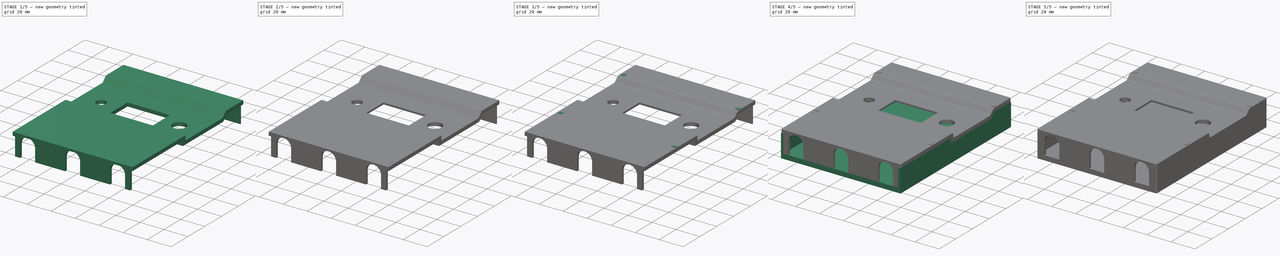
[diagram: build sequence overview — one tinted view per stage of 5, left to right]
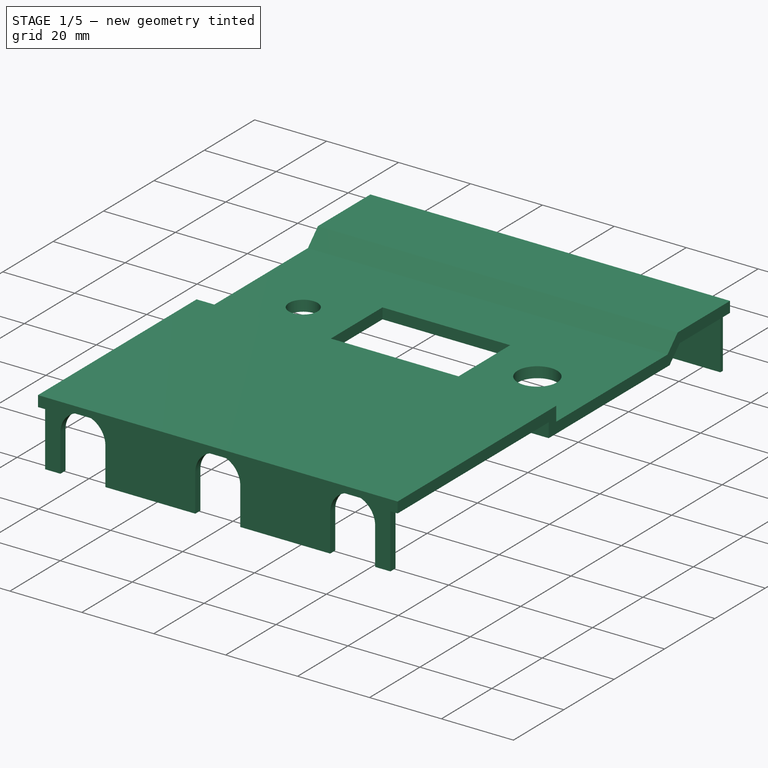
[diagram: stage 1 of 5 — iso view after this stage's code; geometry added in this stage tinted green]
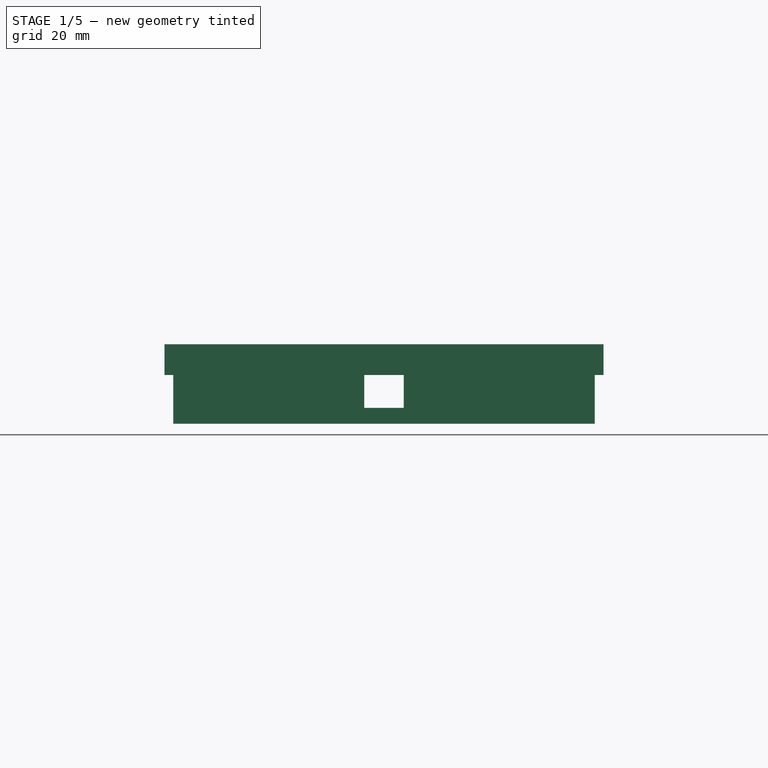
[diagram: stage 1 of 5 — front view after this stage's code; geometry added in this stage tinted green]
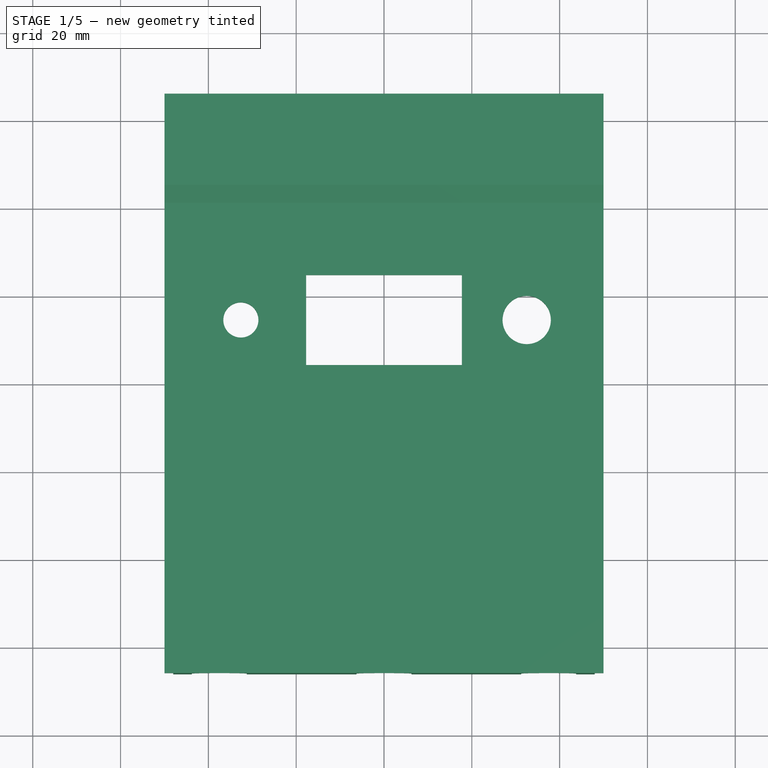
[diagram: stage 1 of 5 — top view after this stage's code; geometry added in this stage tinted green]
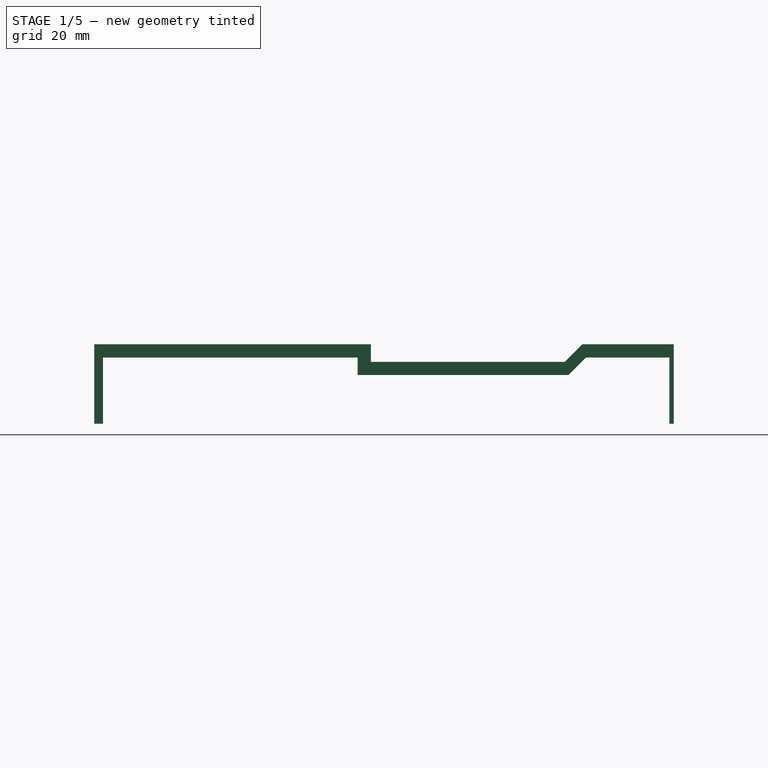
[diagram: stage 1 of 5 — right view after this stage's code; geometry added in this stage tinted green]
FCSTD DOCUMENT  (FreeCAD 0.20R)
Label: Case_V1.0
License: All rights reserved
LicenseURL: http://en.wikipedia.org/wiki/All_rights_reserved
objects: Sketcher::SketchObject×15, PartDesign::Pocket×10, PartDesign::Chamfer×6, PartDesign::Pad×5, PartDesign::Fillet×4, PartDesign::Mirrored×3, PartDesign::Body×2, Spreadsheet::Sheet×1, Part::Feature×1, PartDesign::Plane×1
note: 72 computed .brp shape members not serialized (recipe doc carries the construction recipe); baked Part::Feature solids carry a one-line shape summary decoded from their .brp

FEATURE [PartDesign::Plane] DatumPlane
  AttachmentOffset = pos=(0,0,48) rot=(0,0,1;0rad)
  Length = 148.248
  MapMode = 5
  Placement = pos=(48,-1.07e-14,1.07e-14) rot=(0.57735,0.57735,0.57735;2.0944rad)
  ResizeMode = 0
  Support = -> [YZ_Plane001]
  Width = 66.2481
FEATURE [Sketcher::SketchObject] Sketch005
  FullyConstrained = true
  MapMode = 5
  Placement = pos=(48,-1.07e-14,1.07e-14) rot=(0.57735,0.57735,0.57735;2.0944rad)
  Support = -> [DatumPlane]
  expr: Constraints[31] = 19 - 3.9
  expr: Constraints[33] = 19 - 3.9
  expr: Constraints[34] = 19mm
  expr: Constraints[35] = 2
  expr: Constraints[36] = Spreadsheet.thickness_top
  expr: Constraints[37] = Spreadsheet.thickness_top
  expr: Constraints[38] = Spreadsheet.thickness_top
  expr: Constraints[39] = 1
  expr: Constraints[40] = Spreadsheet.thickness_top
  sketch-geometry (16):
    g0: LineSegment StartX=-64 StartY=3.9 StartZ=0 EndX=-64 EndY=19 EndZ=0
    g1: LineSegment StartX=-64 StartY=19 StartZ=0 EndX=-6 EndY=19 EndZ=0
    g2: LineSegment StartX=-6 StartY=19 StartZ=0 EndX=-6 EndY=15 EndZ=0
    g3: LineSegment StartX=-6 StartY=15 StartZ=0 EndX=42 EndY=15 EndZ=0
    g4: LineSegment StartX=42 StartY=15 StartZ=0 EndX=46 EndY=19 EndZ=0
    g5: LineSegment StartX=46 StartY=19 StartZ=0 EndX=65 EndY=19 EndZ=0
    g6: LineSegment StartX=65 StartY=19 StartZ=0 EndX=65 EndY=3.9 EndZ=0
    g7: LineSegment StartX=-64 StartY=3.9 StartZ=0 EndX=-66 EndY=3.9 EndZ=0
    g8: LineSegment StartX=-66 StartY=3.9 StartZ=0 EndX=-66 EndY=22 EndZ=0
    g9: LineSegment StartX=-66 StartY=22 StartZ=0 EndX=-3 EndY=22 EndZ=0
    g10: LineSegment StartX=-3 StartY=22 StartZ=0 EndX=-3 EndY=18 EndZ=0
    g11: LineSegment StartX=-3 StartY=18 StartZ=0 EndX=41.19 EndY=18 EndZ=0
    g12: LineSegment StartX=41.19 StartY=18 StartZ=0 EndX=45.19 EndY=22 EndZ=0
    g13: LineSegment StartX=45.19 StartY=22 StartZ=0 EndX=66 EndY=22 EndZ=0
    g14: LineSegment StartX=66 StartY=22 StartZ=0 EndX=66 EndY=3.9 EndZ=0
    g15: LineSegment StartX=66 StartY=3.9 StartZ=0 EndX=65 EndY=3.9 EndZ=0
  constraints (48):
    c: Vertical(g0)
    c: Coincident(g1,g0)
    c: Horizontal(g1)
    c: Coincident(g2,g1)
    c: Vertical(g2)
    c: Coincident(g3,g2)
    c: Horizontal(g3)
    c: Coincident(g4,g3)
    c: Coincident(g5,g4)
    c: Horizontal(g5)
    c: Coincident(g6,g5)
    c: Vertical(g6)
    c: Coincident(g7,g0)
    c: Coincident(g8,g7)
    c: Vertical(g8)
    c: Coincident(g9,g8)
    c: Horizontal(g9)
    c: Coincident(g10,g9)
    c: Vertical(g10)
    c: Coincident(g11,g10)
    c: Horizontal(g11)
    c: Coincident(g12,g11)
    c: Coincident(g13,g12)
    c: Horizontal(g13)
    c: Coincident(g14,g13)
    c: Vertical(g14)
    c: Coincident(g15,g14)
    c: Coincident(g15,g6)
    c: DistanceX(g0,g6) = 129
    c: DistanceX(g0,g-1) = 64
    c: DistanceX(g0,g1) = 58
    c: DistanceY(g0,g0) = 15.1
    c: DistanceY(g2,g1) = 4
    c: DistanceY(g6,g5) = 15.1
    c: DistanceX(g4,g5) = 19
    c: DistanceX(g7,g0) = 2
    c: DistanceY(g0,g8) = 3
    c: DistanceX(g1,g9) = 3
    c: DistanceY(g2,g10) = 3
    c: DistanceX(g6,g14) = 1
    c: DistanceY(g5,g13) = 3
    c: DistanceX(g2,g3) = 48
    c: Angle(g12,g11) = 2.35619
    c: DistanceY(g-1,g7) = 3.9
    c: Horizontal(g7,g0)
    c: DistanceY(g-1,g6) = 3.9
    c: Horizontal(g6,g14)
    c: Distance(g13) = 20.81
FEATURE [PartDesign::Pad] Pad002
  Direction = (1,-1e-16,1e-16)
  Length = 96
  Length2 = 10
  Placement = pos=(48,-1.1e-14,1.1e-14) rot=(0.57735,0.57735,0.57735;2.0944rad)
  Profile = -> Sketch005
  ReferenceAxis = -> Sketch005 [N_Axis]
  Reversed = true
  Type = 0
FEATURE [Sketcher::SketchObject] Sketch006
  ExternalGeometry = -> [Pad002]
  FullyConstrained = true
  MapMode = 5
  Placement = pos=(48,-1.3e-14,18) rot=(0,0,-1;1.5708rad)
  Support = -> [Pad002]
  expr: Constraints[0] = 15.5mm
  expr: Constraints[3] = 14.4 + 3 - 2
  sketch-geometry (7):
    g0: Circle CenterX=-14.5 CenterY=-15.5 CenterZ=0 NormalX=0 NormalY=0 NormalZ=1 AngleXU=0 Radius=5.5
    g1: Circle CenterX=-14.5 CenterY=-80.6 CenterZ=0 NormalX=0 NormalY=0 NormalZ=1 AngleXU=0 Radius=4
    g2: LineSegment StartX=-24.75 StartY=-65.75 StartZ=0 EndX=-24.75 EndY=-30.25 EndZ=0
    g3: LineSegment StartX=-24.75 StartY=-30.25 StartZ=0 EndX=-4.25 EndY=-30.25 EndZ=0
    g4: LineSegment StartX=-4.25 StartY=-30.25 StartZ=0 EndX=-4.25 EndY=-65.75 EndZ=0
    g5: LineSegment StartX=-4.25 StartY=-65.75 StartZ=0 EndX=-24.75 EndY=-65.75 EndZ=0
    g6: GeomPoint X=-14.5 Y=-48 Z=0
  constraints (19):
    c: DistanceY(g0,g-1) = 15.5
    c: DistanceX(g-3,g0) = 51.5
    c: DistanceX(g-3,g1) = 51.5
    c: DistanceY(g-5,g1) = 15.4
    c: Diameter(g1) = 8
    c: Diameter(g0) = 11
    c: Coincident(g2,g3)
    c: Coincident(g3,g4)
    c: Coincident(g4,g5)
    c: Coincident(g5,g2)
    c: Horizontal(g3)
    c: Horizontal(g5)
    c: Vertical(g2)
    c: Vertical(g4)
    c: Symmetric(g3,g2,g6)
    c: Distance(g2) = 35.5
    c: Distance(g5) = 20.5
    c: DistanceX(g-3,g6) = 51.5
    c: DistanceY(g6,g-4) = 48
FEATURE [Sketcher::SketchObject] Sketch007
  ExternalGeometry = -> [Pad002]
  FullyConstrained = true
  MapMode = 5
  Placement = pos=(-48,-1.1e-14,1.1e-14) rot=(0.57735,0.57735,-0.57735;4.18879rad)
  Support = -> [Pad002]
  sketch-geometry (12):
    g0: LineSegment StartX=66 StartY=-22 StartZ=0 EndX=45.19 EndY=-22 EndZ=0
    g1: LineSegment StartX=45.19 StartY=-22 StartZ=0 EndX=41.19 EndY=-18 EndZ=0
    g2: LineSegment StartX=41.19 StartY=-18 StartZ=0 EndX=-3 EndY=-18 EndZ=0
    g3: LineSegment StartX=-3 StartY=-18 StartZ=0 EndX=-3 EndY=-22 EndZ=0
    g4: LineSegment StartX=-3 StartY=-22 StartZ=0 EndX=-66 EndY=-22 EndZ=0
    g5: LineSegment StartX=-6 StartY=-19 StartZ=0 EndX=-66 EndY=-19 EndZ=0
    g6: LineSegment StartX=-66 StartY=-22 StartZ=0 EndX=-66 EndY=-19 EndZ=0
    g7: LineSegment StartX=-6 StartY=-15 StartZ=0 EndX=-6 EndY=-19 EndZ=0
    g8: LineSegment StartX=-6 StartY=-15 StartZ=0 EndX=42 EndY=-15 EndZ=0
    g9: LineSegment StartX=46 StartY=-19 StartZ=0 EndX=42 EndY=-15 EndZ=0
    g10: LineSegment StartX=46 StartY=-19 StartZ=0 EndX=66 EndY=-19 EndZ=0
    g11: LineSegment StartX=66 StartY=-22 StartZ=0 EndX=66 EndY=-19 EndZ=0
  constraints (26):
    c: Coincident(g0,g-16)
    c: Coincident(g0,g-5)
    c: Coincident(g1,g0)
    c: Coincident(g1,g-4)
    c: Coincident(g2,g1)
    c: Coincident(g2,g-10)
    c: Coincident(g3,g2)
    c: Coincident(g3,g-11)
    c: Coincident(g4,g3)
    c: Coincident(g4,g-14)
    c: Coincident(g5,g-12)
    c: PointOnObject(g5,g-14)
    c: Horizontal(g5)
    c: Coincident(g6,g4)
    c: Coincident(g6,g5)
    c: Coincident(g7,g-9)
    c: Coincident(g7,g5)
    c: Coincident(g8,g7)
    c: Coincident(g8,g-8)
    c: Coincident(g9,g-7)
    c: Coincident(g9,g8)
    c: Coincident(g10,g9)
    c: PointOnObject(g10,g-16)
    c: Horizontal(g10)
    c: Coincident(g11,g0)
    c: Coincident(g11,g10)
FEATURE [PartDesign::Pad] Pad003
  BaseFeature = -> Pad002
  Direction = (-1,0,2e-16)
  Length = 2
  Length2 = 10
  Placement = pos=(48,-1.1e-14,1.1e-14) rot=(0.57735,0.57735,0.57735;2.0944rad)
  Profile = -> Sketch007
  ReferenceAxis = -> Sketch007 [N_Axis]
  Type = 0
FEATURE [PartDesign::Mirrored] Mirrored
  BaseFeature = -> Pad003
  MirrorPlane = -> YZ_Plane001
  Originals = -> [Pad003]
  Placement = pos=(48,-1.1e-14,1.1e-14) rot=(0.57735,0.57735,0.57735;2.0944rad)
FEATURE [PartDesign::Pocket] Pocket002
  BaseFeature = -> Mirrored
  Direction = (-2e-16,1e-16,-1)
  Length = 5
  Length2 = 5
  Placement = pos=(48,-1.1e-14,1.1e-14) rot=(0.57735,0.57735,0.57735;2.0944rad)
  Profile = -> Sketch006
  ReferenceAxis = -> Sketch006 [N_Axis]
  Type = 1
FEATURE [Sketcher::SketchObject] Sketch008
  ExternalGeometry = -> [Pocket002]
  FullyConstrained = true
  MapMode = 5
  Placement = pos=(48,-66,-3.5e-15) rot=(0.57735,0.57735,-0.57735;2.0944rad)
  Support = -> [Pocket002]
  sketch-geometry (12):
    g0: ArcOfCircle CenterX=-14.3 CenterY=-48 CenterZ=0 NormalX=0 NormalY=0 NormalZ=1 AngleXU=0 Radius=6.25 StartAngle=1.5708 EndAngle=4.71239
    g1: ArcOfCircle CenterX=-14.3 CenterY=-10.5 CenterZ=0 NormalX=0 NormalY=0 NormalZ=1 AngleXU=0 Radius=6.25 StartAngle=1.5708 EndAngle=4.71239
    g2: ArcOfCircle CenterX=-14.3 CenterY=-85.5 CenterZ=0 NormalX=0 NormalY=0 NormalZ=1 AngleXU=0 Radius=6.25 StartAngle=1.5708 EndAngle=4.71239
    g3: LineSegment StartX=-14.3 StartY=-91.75 StartZ=0 EndX=-3.9 EndY=-91.75 EndZ=0
    g4: LineSegment StartX=-14.3 StartY=-79.25 StartZ=0 EndX=-3.9 EndY=-79.25 EndZ=0
    g5: LineSegment StartX=-14.3 StartY=-54.25 StartZ=0 EndX=-3.9 EndY=-54.25 EndZ=0
    g6: LineSegment StartX=-14.3 StartY=-41.75 StartZ=0 EndX=-3.9 EndY=-41.75 EndZ=0
    g7: LineSegment StartX=-14.3 StartY=-16.75 StartZ=0 EndX=-3.9 EndY=-16.75 EndZ=0
    g8: LineSegment StartX=-14.3 StartY=-4.25 StartZ=0 EndX=-3.9 EndY=-4.25 EndZ=0
    g9: LineSegment StartX=-3.9 StartY=-16.75 StartZ=0 EndX=-3.9 EndY=-4.25 EndZ=0
    g10: LineSegment StartX=-3.9 StartY=-54.25 StartZ=0 EndX=-3.9 EndY=-41.75 EndZ=0
    g11: LineSegment StartX=-3.9 StartY=-91.75 StartZ=0 EndX=-3.9 EndY=-79.25 EndZ=0
  constraints (33):
    c: Diameter(g2) = 12.5
    c: Equal(g2,g0)
    c: Equal(g0,g1)
    c: DistanceX(g0,g-7) = 10.4
    c: DistanceY(g0,g-7) = 48
    c: DistanceX(g1,g-7) = 10.4
    c: DistanceX(g2,g-4) = 10.4
    c: DistanceY(g2,g0) = 37.5
    c: DistanceY(g0,g1) = 37.5
    c: PointOnObject(g3,g-3)
    c: Horizontal(g3)
    c: PointOnObject(g4,g-3)
    c: Horizontal(g4)
    c: PointOnObject(g5,g-3)
    c: Horizontal(g5)
    c: PointOnObject(g6,g-3)
    c: Horizontal(g6)
    c: PointOnObject(g7,g-3)
    c: Horizontal(g7)
    c: PointOnObject(g8,g-3)
    c: Horizontal(g8)
    c: Coincident(g9,g7)
    c: Coincident(g9,g8)
    c: Coincident(g10,g5)
    c: Coincident(g10,g6)
    c: Coincident(g11,g3)
    c: Coincident(g11,g4)
    c: Tangent(g2,g3) = -1.5708
    c: Tangent(g2,g4) = 1.5708
    c: Tangent(g0,g5) = -1.5708
    c: Tangent(g0,g6) = 1.5708
    c: Tangent(g1,g7) = -1.5708
    c: Tangent(g1,g8) = 1.5708
FEATURE [PartDesign::Pocket] Pocket003
  BaseFeature = -> Pocket002
  Direction = (1e-16,1,1e-16)
  Length = 5
  Length2 = 5
  Placement = pos=(48,-1.1e-14,1.1e-14) rot=(0.57735,0.57735,0.57735;2.0944rad)
  Profile = -> Sketch008
  ReferenceAxis = -> Sketch008 [N_Axis]
  Type = 2
FEATURE [Sketcher::SketchObject] Sketch009
  ExternalGeometry = -> [Pocket003]
  FullyConstrained = true
  MapMode = 5
  Placement = pos=(48,66,2.55e-14) rot=(-0.57735,-0.57735,-0.57735;2.0944rad)
  Support = -> [Pocket003]
  expr: Constraints[18] = 96 / 2 - 4.5
  sketch-geometry (17):
    g0: LineSegment StartX=10.81 StartY=-59.06 StartZ=0 EndX=10.81 EndY=-65.4 EndZ=0
    g1: LineSegment StartX=9.51 StartY=-66.7 StartZ=0 EndX=8.95 EndY=-66.7 EndZ=0
    g2: LineSegment StartX=7.65 StartY=-65.4 StartZ=0 EndX=7.65 EndY=-59.06 EndZ=0
    g3: LineSegment StartX=8.95 StartY=-57.76 StartZ=0 EndX=9.51 EndY=-57.76 EndZ=0
    g4: GeomPoint X=9.23 Y=-62.23 Z=0
    g5: LineSegment StartX=18.5 StartY=-43.5 StartZ=0 EndX=7.5 EndY=-43.5 EndZ=0
    g6: LineSegment StartX=7.5 StartY=-43.5 StartZ=0 EndX=7.5 EndY=-52.5 EndZ=0
    g7: LineSegment StartX=7.5 StartY=-52.5 StartZ=0 EndX=18.5 EndY=-52.5 EndZ=0
    g8: LineSegment StartX=18.5 StartY=-52.5 StartZ=0 EndX=18.5 EndY=-43.5 EndZ=0
    g9: ArcOfCircle CenterX=9.51 CenterY=-59.06 CenterZ=0 NormalX=0 NormalY=0 NormalZ=1 AngleXU=0 Radius=1.3 StartAngle=3e-16 EndAngle=1.5708
    g10: GeomPoint X=10.81 Y=-57.76 Z=0
    g11: ArcOfCircle CenterX=9.51 CenterY=-65.4 CenterZ=0 NormalX=0 NormalY=0 NormalZ=1 AngleXU=0 Radius=1.3 StartAngle=4.71239 EndAngle=6.28319
    g12: GeomPoint X=10.81 Y=-66.7 Z=0
    g13: ArcOfCircle CenterX=8.95 CenterY=-65.4 CenterZ=0 NormalX=0 NormalY=0 NormalZ=1 AngleXU=0 Radius=1.3 StartAngle=3.14159 EndAngle=4.71239
    g14: GeomPoint X=7.65 Y=-66.7 Z=0
    g15: ArcOfCircle CenterX=8.95 CenterY=-59.06 CenterZ=0 NormalX=0 NormalY=0 NormalZ=1 AngleXU=0 Radius=1.3 StartAngle=1.5708 EndAngle=3.14159
    g16: GeomPoint X=7.65 Y=-57.76 Z=0
  constraints (41):
    c: Horizontal(g1)
    c: Horizontal(g3)
    c: Vertical(g0)
    c: Vertical(g2)
    c: Symmetric(g14,g10,g4)
    c: Distance(g14,g12) = 3.16
    c: Distance(g16,g14) = 8.94
    c: Coincident(g5,g6)
    c: Coincident(g6,g7)
    c: Coincident(g7,g8)
    c: Coincident(g8,g5)
    c: Horizontal(g5)
    c: Horizontal(g7)
    c: Vertical(g6)
    c: Vertical(g8)
    c: DistanceX(g-4,g5) = 14.6
    c: DistanceX(g-4,g5) = 3.6
    c: Distance(g8) = 9
    c: DistanceY(g-5,g6) = 43.5
    c: DistanceY(g-5,g4) = 33.77
    c: DistanceX(g-5,g16) = 3.75
    c: PointOnObject(g10,g0)
    c: PointOnObject(g10,g3)
    c: Tangent(g0,g9) = 1.5708
    c: Tangent(g3,g9) = 1.5708
    c: PointOnObject(g12,g0)
    c: PointOnObject(g12,g1)
    c: Tangent(g0,g11) = 1.5708
    c: Tangent(g1,g11) = 1.5708
    c: PointOnObject(g14,g1)
    c: PointOnObject(g14,g2)
    c: Tangent(g1,g13) = 1.5708
    c: Tangent(g2,g13) = 1.5708
    c: PointOnObject(g16,g2)
    c: PointOnObject(g16,g3)
    c: Tangent(g2,g15) = 1.5708
    c: Tangent(g3,g15) = 1.5708
    c: Equal(g9,g11)
    c: Equal(g11,g13)
    c: Equal(g13,g15)
    c: Radius(g9) = 1.3
FEATURE [PartDesign::Pocket] Pocket004
  BaseFeature = -> Pocket003
  Direction = (-1e-16,-1,-1e-16)
  Length = 5
  Length2 = 5
  Placement = pos=(48,-1.1e-14,1.1e-14) rot=(0.57735,0.57735,0.57735;2.0944rad)
  Profile = -> Sketch009
  ReferenceAxis = -> Sketch009 [N_Axis]
  Type = 2
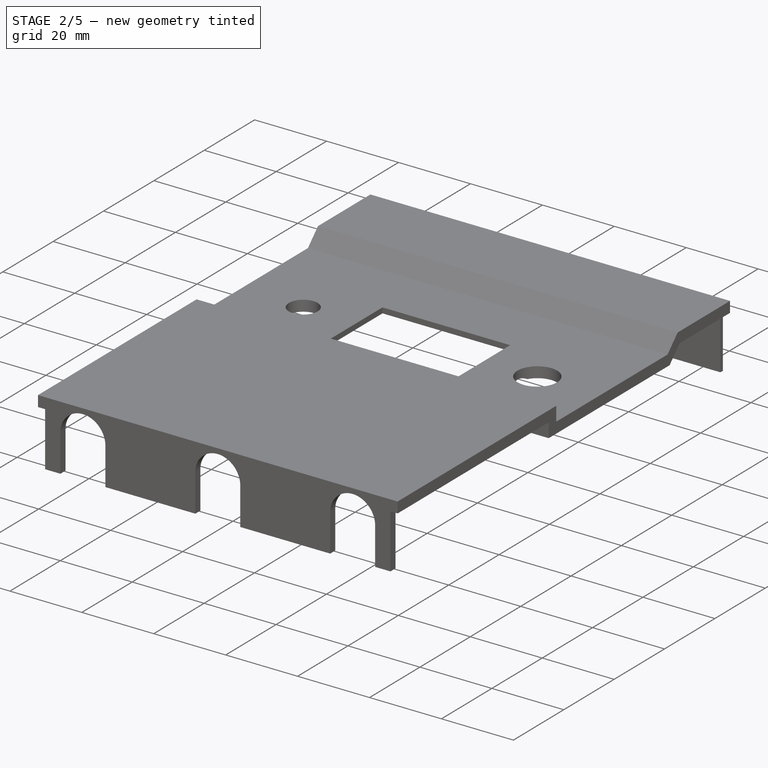
[diagram: stage 2 of 5 — iso view after this stage's code; geometry added in this stage tinted green]
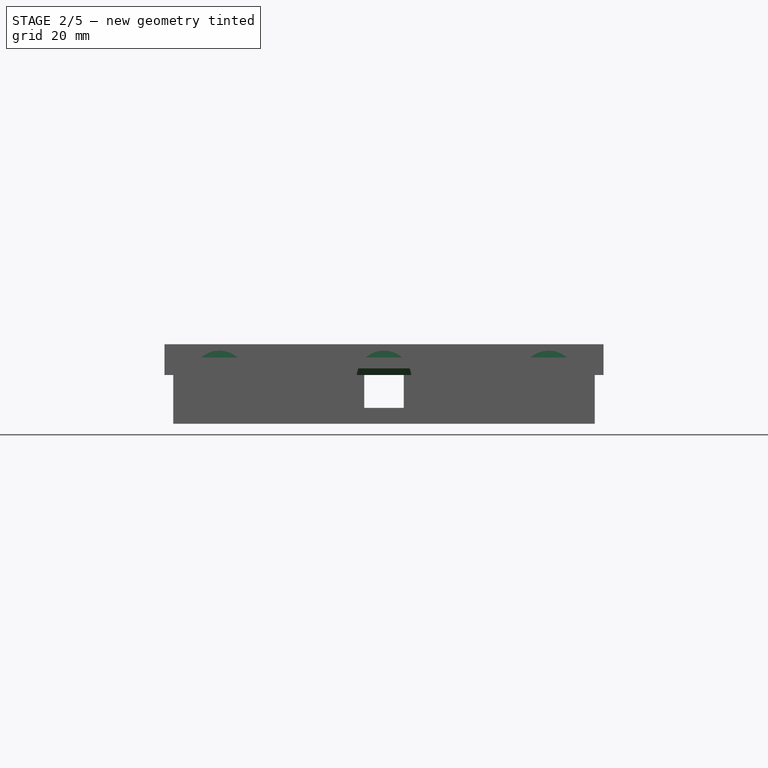
[diagram: stage 2 of 5 — front view after this stage's code; geometry added in this stage tinted green]
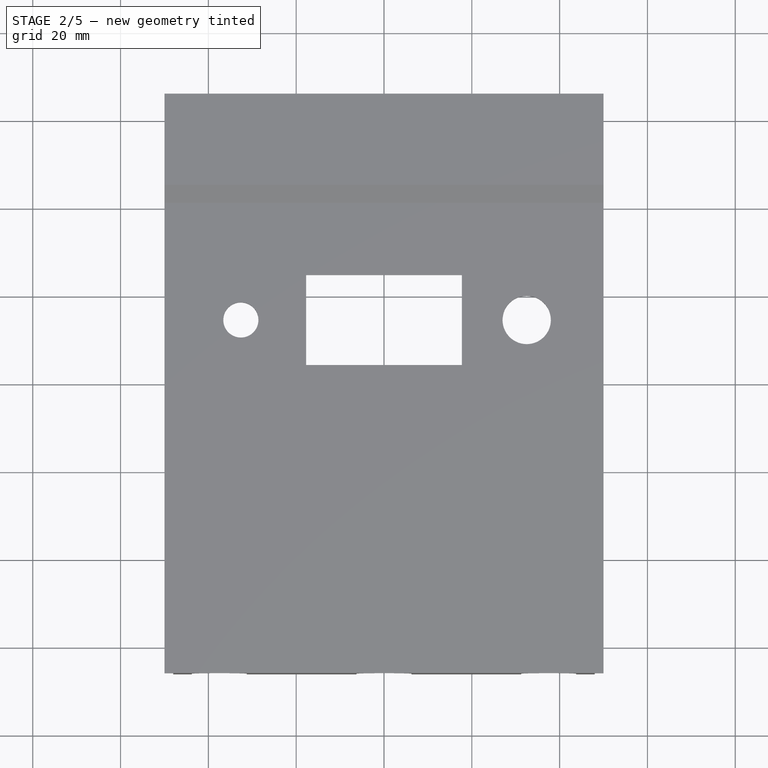
[diagram: stage 2 of 5 — top view after this stage's code; geometry added in this stage tinted green]
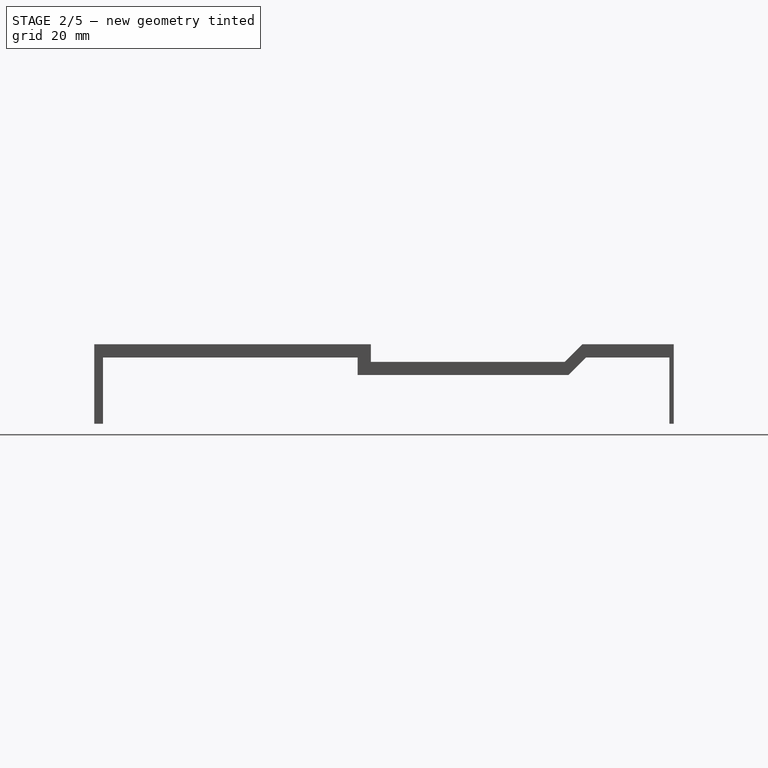
[diagram: stage 2 of 5 — right view after this stage's code; geometry added in this stage tinted green]
FEATURE [Sketcher::SketchObject] Sketch010
  ExternalGeometry = -> [Pocket004]
  FullyConstrained = true
  MapMode = 5
  Placement = pos=(48,-1.27e-14,15) rot=(0.707107,0.707107,0;3.14159rad)
  Support = -> [Pocket004]
  sketch-geometry (4):
    g0: LineSegment StartX=-6 StartY=-75.75 StartZ=0 EndX=34.75 EndY=-75.75 EndZ=0
    g1: LineSegment StartX=34.75 StartY=-75.75 StartZ=0 EndX=34.75 EndY=-20.25 EndZ=0
    g2: LineSegment StartX=34.75 StartY=-20.25 StartZ=0 EndX=-6 EndY=-20.25 EndZ=0
    g3: LineSegment StartX=-6 StartY=-20.25 StartZ=0 EndX=-6 EndY=-75.75 EndZ=0
  constraints (12):
    c: Coincident(g0,g1)
    c: Coincident(g1,g2)
    c: Coincident(g2,g3)
    c: Coincident(g3,g0)
    c: Horizontal(g0)
    c: Horizontal(g2)
    c: Vertical(g1)
    c: Vertical(g3)
    c: DistanceY(g0,g-6) = 10
    c: DistanceX(g-6,g0) = 10
    c: PointOnObject(g2,g-7)
    c: DistanceY(g-4,g2) = 10
FEATURE [PartDesign::Pocket] Pocket005
  BaseFeature = -> Pocket004
  Direction = (0,1e-16,1)
  Length = 1.5
  Length2 = 5
  Placement = pos=(48,-1.1e-14,1.1e-14) rot=(0.57735,0.57735,0.57735;2.0944rad)
  Profile = -> Sketch010
  ReferenceAxis = -> Sketch010 [N_Axis]
  Type = 0
FEATURE [PartDesign::Chamfer] Chamfer
  Angle = 45
  Base = -> Pocket005 [Edge109,Edge110,Edge111]
  BaseFeature = -> Pocket005
  ChamferType = 0
  FlipDirection = false
  Placement = pos=(48,-1.1e-14,1.1e-14) rot=(0.57735,0.57735,0.57735;2.0944rad)
  Size = 1.49
  Size2 = 1
  SupportTransform = false
  UseAllEdges = false
FEATURE [Sketcher::SketchObject] Sketch011
  ExternalGeometry = -> [Chamfer]
  FullyConstrained = true
  MapMode = 5
  Placement = pos=(48,-1.31e-14,19) rot=(0.707107,0.707107,0;3.14159rad)
  Support = -> [Chamfer]
  sketch-geometry (15):
    g0: LineSegment StartX=-37 StartY=-3 StartZ=0 EndX=-37 EndY=-18 EndZ=0
    g1: LineSegment StartX=-37 StartY=-18 StartZ=0 EndX=-64 EndY=-18 EndZ=0
    g2: LineSegment StartX=-64 StartY=-18 StartZ=0 EndX=-64 EndY=-3 EndZ=0
    g3: LineSegment StartX=-64 StartY=-3 StartZ=0 EndX=-37 EndY=-3 EndZ=0
    g4: GeomPoint X=-50.5 Y=-10.5 Z=0
    g5: LineSegment StartX=-37 StartY=-40.5 StartZ=0 EndX=-37 EndY=-55.5 EndZ=0
    g6: LineSegment StartX=-37 StartY=-55.5 StartZ=0 EndX=-64 EndY=-55.5 EndZ=0
    g7: LineSegment StartX=-64 StartY=-55.5 StartZ=0 EndX=-64 EndY=-40.5 EndZ=0
    g8: LineSegment StartX=-64 StartY=-40.5 StartZ=0 EndX=-37 EndY=-40.5 EndZ=0
    g9: GeomPoint X=-50.5 Y=-48 Z=0
    g10: LineSegment StartX=-37 StartY=-93 StartZ=0 EndX=-37 EndY=-78 EndZ=0
    g11: LineSegment StartX=-37 StartY=-78 StartZ=0 EndX=-64 EndY=-78 EndZ=0
    g12: LineSegment StartX=-64 StartY=-78 StartZ=0 EndX=-64 EndY=-93 EndZ=0
    g13: LineSegment StartX=-64 StartY=-93 StartZ=0 EndX=-37 EndY=-93 EndZ=0
    g14: GeomPoint X=-50.5 Y=-85.5 Z=0
  constraints (39):
    c: Coincident(g0,g1)
    c: Coincident(g1,g2)
    c: Coincident(g2,g3)
    c: Coincident(g3,g0)
    c: Horizontal(g1)
    c: Horizontal(g3)
    c: Vertical(g0)
    c: Vertical(g2)
    c: Symmetric(g1,g0,g4)
    c: PointOnObject(g1,g-3)
    c: Coincident(g5,g6)
    c: Coincident(g6,g7)
    c: Coincident(g7,g8)
    c: Coincident(g8,g5)
    c: Horizontal(g6)
    c: Horizontal(g8)
    c: Vertical(g5)
    c: Vertical(g7)
    c: Symmetric(g6,g5,g9)
    c: PointOnObject(g6,g-5)
    c: Coincident(g10,g11)
    c: Coincident(g11,g12)
    c: Coincident(g12,g13)
    c: Coincident(g13,g10)
    c: Horizontal(g11)
    c: Horizontal(g13)
    c: Vertical(g10)
    c: Vertical(g12)
    c: Symmetric(g11,g10,g14)
    c: PointOnObject(g11,g-5)
    c: Distance(g0) = 15
    c: Distance(g5) = 15
    c: Distance(g10) = 15
    c: Distance(g11) = 27
    c: Distance(g8) = 27
    c: Distance(g1) = 27
    c: DistanceY(g9,g4) = 37.5
    c: DistanceY(g14,g9) = 37.5
    c: DistanceY(g-8,g9) = 50
FEATURE [PartDesign::Pocket] Pocket006
  BaseFeature = -> Chamfer
  Direction = (2e-16,-1e-16,1)
  Length = 2
  Length2 = 5
  Placement = pos=(48,-1.1e-14,1.1e-14) rot=(0.57735,0.57735,0.57735;2.0944rad)
  Profile = -> Sketch011
  ReferenceAxis = -> Sketch011 [N_Axis]
  Type = 0
FEATURE [PartDesign::Chamfer] Chamfer001
  Angle = 45
  Base = -> Pocket006 [Edge101,Edge105,Edge115,Edge119,Edge129,Edge133]
  BaseFeature = -> Pocket006
  ChamferType = 0
  FlipDirection = false
  Placement = pos=(48,-1.1e-14,1.1e-14) rot=(0.57735,0.57735,0.57735;2.0944rad)
  Size = 1.99
  Size2 = 1
  SupportTransform = false
  UseAllEdges = false
FEATURE [PartDesign::Chamfer] Chamfer002
  Angle = 45
  Base = -> Chamfer001 [Edge256,Edge255,Edge257,Edge258]
  BaseFeature = -> Chamfer001
  ChamferType = 0
  FlipDirection = false
  Placement = pos=(48,-1.1e-14,1.1e-14) rot=(0.57735,0.57735,0.57735;2.0944rad)
  Size = 0.99
  Size2 = 1
  SupportTransform = false
  UseAllEdges = false
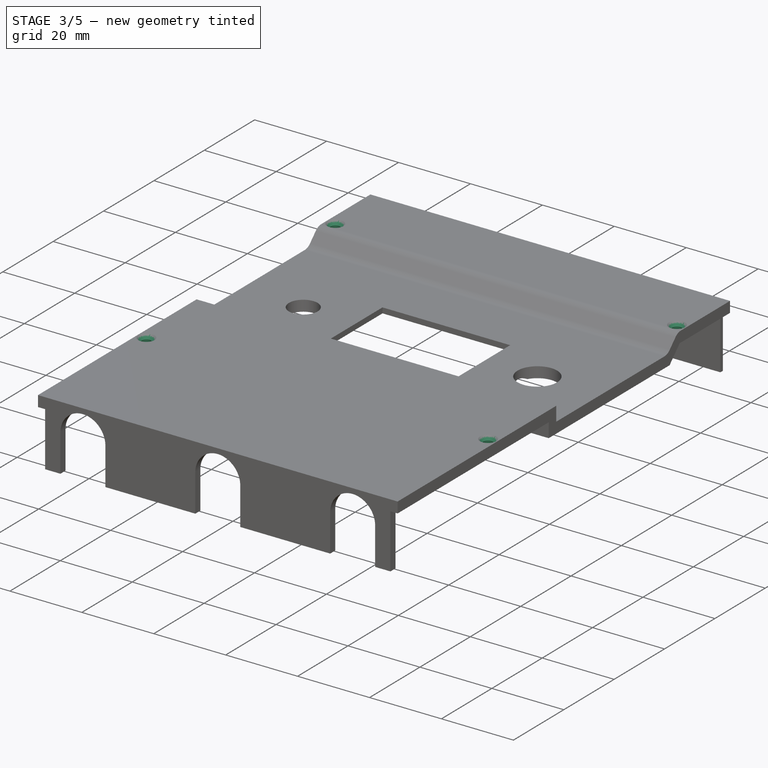
[diagram: stage 3 of 5 — iso view after this stage's code; geometry added in this stage tinted green]
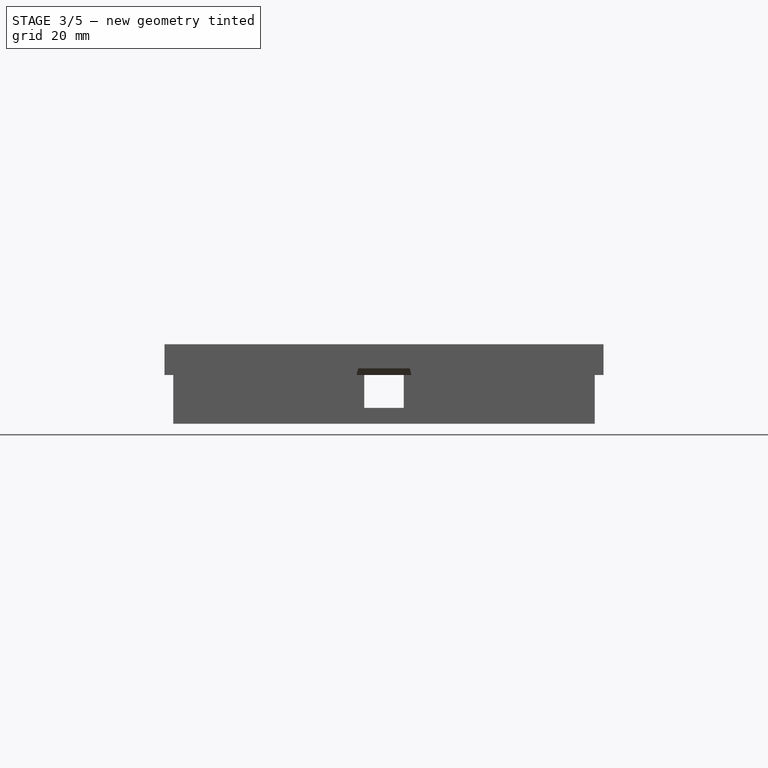
[diagram: stage 3 of 5 — front view after this stage's code; geometry added in this stage tinted green]
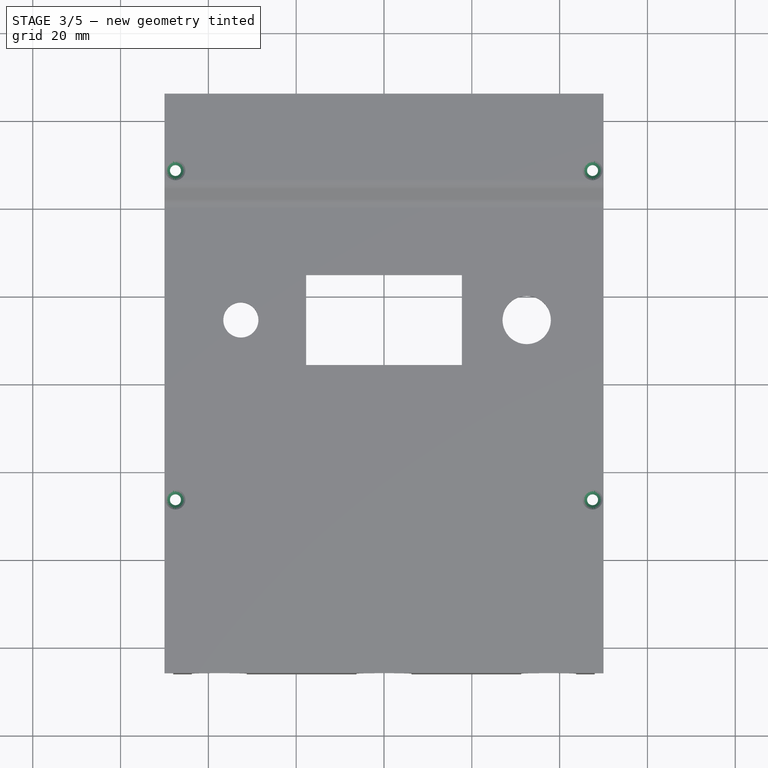
[diagram: stage 3 of 5 — top view after this stage's code; geometry added in this stage tinted green]
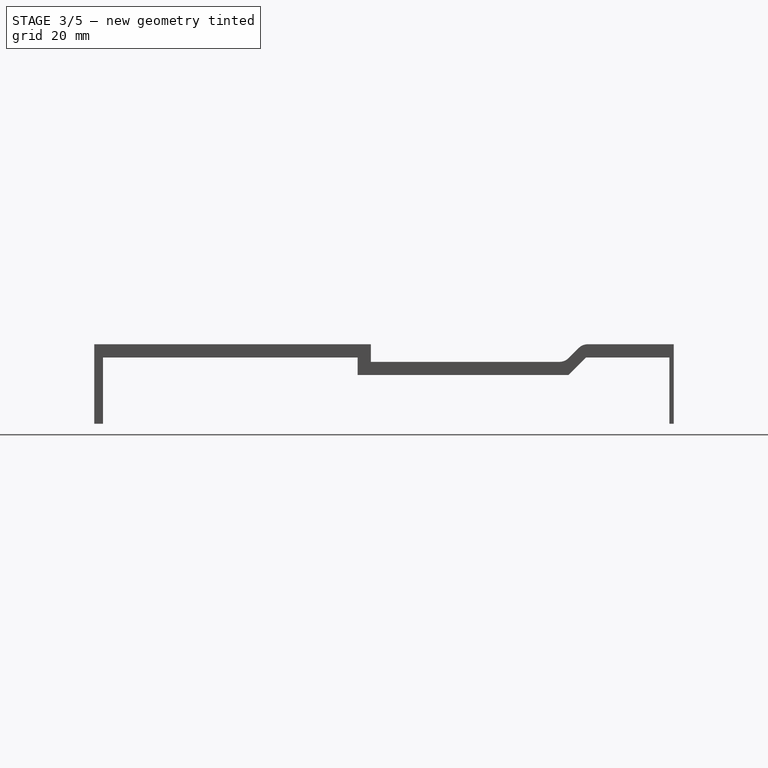
[diagram: stage 3 of 5 — right view after this stage's code; geometry added in this stage tinted green]
FEATURE [PartDesign::Chamfer] Chamfer003
  Angle = 45
  Base = -> Chamfer002 [Edge16,Edge15,Edge14,Edge13,Edge12,Edge11,Edge18,Edge17]
  BaseFeature = -> Chamfer002
  ChamferType = 0
  FlipDirection = false
  Placement = pos=(48,-1.1e-14,1.1e-14) rot=(0.57735,0.57735,0.57735;2.0944rad)
  Size = 0.99
  Size2 = 1
  SupportTransform = false
  UseAllEdges = false
FEATURE [PartDesign::Body] Body  label="Bottom"
  Group = -> [Sketch,Pad,Sketch001,Pocket,Sketch003,Pocket001,Sketch004,Pad001,Sketch012,Pad004,Sketch013,Chamfer004,Pocket007,Mirrored001,Fillet]
  Origin = -> Origin
  Tip = -> Fillet
FEATURE [Sketcher::SketchObject] Sketch014
  ExternalGeometry = -> [Chamfer003]
  FullyConstrained = true
  MapMode = 5
  Placement = pos=(48,-1.34e-14,22) rot=(0,0,-1;1.5708rad)
  Support = -> [Chamfer003]
  sketch-geometry (1):
    g0: Circle CenterX=26.5 CenterY=-95.5 CenterZ=0 NormalX=0 NormalY=0 NormalZ=1 AngleXU=0 Radius=1.25
  constraints (3):
    c: DistanceX(g0,g-4) = 39.5
    c: DistanceY(g-3,g0) = 2.5
    c: Diameter(g0) = 2.5
FEATURE [PartDesign::Pocket] Pocket008
  BaseFeature = -> Chamfer003
  Direction = (-2e-16,1e-16,-1)
  Length = 5
  Length2 = 5
  Placement = pos=(48,-1.1e-14,1.1e-14) rot=(0.57735,0.57735,0.57735;2.0944rad)
  Profile = -> Sketch014
  ReferenceAxis = -> Sketch014 [N_Axis]
  Type = 2
FEATURE [Sketcher::SketchObject] Sketch015
  ExternalGeometry = -> [Pocket008]
  FullyConstrained = true
  MapMode = 5
  Placement = pos=(48,-1.1e-14,22) rot=(0,0,-1;1.5708rad)
  Support = -> [Pocket008]
  sketch-geometry (1):
    g0: Circle CenterX=-48.5 CenterY=-95.5 CenterZ=0 NormalX=0 NormalY=0 NormalZ=1 AngleXU=0 Radius=1.25
  constraints (3):
    c: Diameter(g0) = 2.5
    c: DistanceX(g-3,g0) = 17.5
    c: DistanceY(g-4,g0) = 2.5
FEATURE [PartDesign::Pocket] Pocket009
  BaseFeature = -> Pocket008
  Direction = (-2e-16,0,-1)
  Length = 5
  Length2 = 5
  Placement = pos=(48,-1.1e-14,1.1e-14) rot=(0.57735,0.57735,0.57735;2.0944rad)
  Profile = -> Sketch015
  ReferenceAxis = -> Sketch015 [N_Axis]
  Type = 2
FEATURE [PartDesign::Chamfer] Chamfer005
  Angle = 45
  Base = -> Pocket009 [Edge188,Edge157,Edge45,Edge88]
  BaseFeature = -> Pocket009
  ChamferType = 0
  FlipDirection = false
  Placement = pos=(48,-1.1e-14,1.1e-14) rot=(0.57735,0.57735,0.57735;2.0944rad)
  Size = 1
  Size2 = 1
  SupportTransform = false
  UseAllEdges = false
FEATURE [PartDesign::Mirrored] Mirrored002
  BaseFeature = -> Chamfer005
  MirrorPlane = -> YZ_Plane001
  Originals = -> [Pocket008,Pocket009,Chamfer005]
  Placement = pos=(48,-1.1e-14,1.1e-14) rot=(0.57735,0.57735,0.57735;2.0944rad)
FEATURE [PartDesign::Fillet] Fillet001
  Base = -> Mirrored002 [Edge3,Edge18]
  BaseFeature = -> Mirrored002
  Placement = pos=(48,-1.1e-14,1.1e-14) rot=(0.57735,0.57735,0.57735;2.0944rad)
  Radius = 3
  SupportTransform = false
  UseAllEdges = false
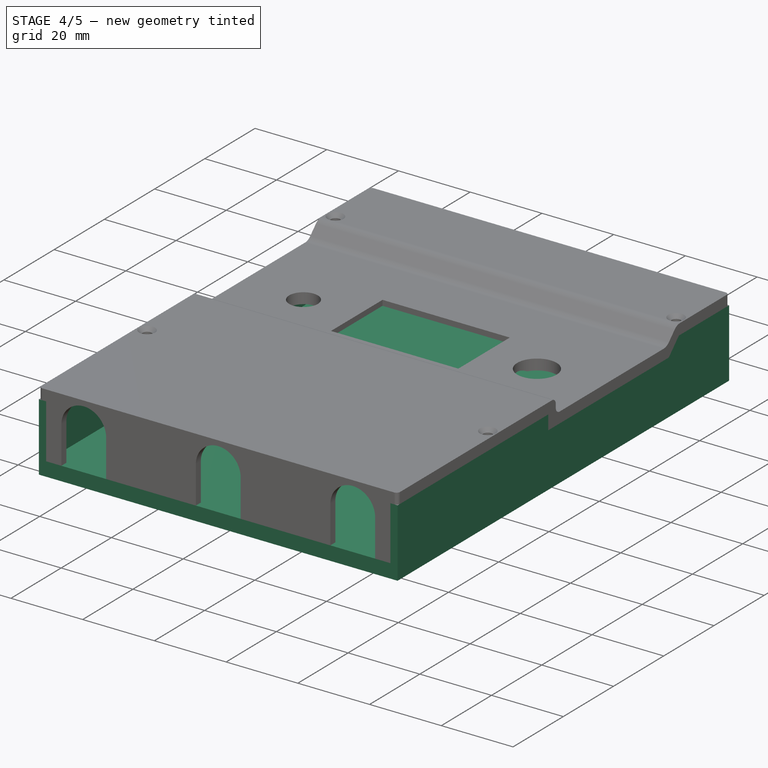
[diagram: stage 4 of 5 — iso view after this stage's code; geometry added in this stage tinted green]
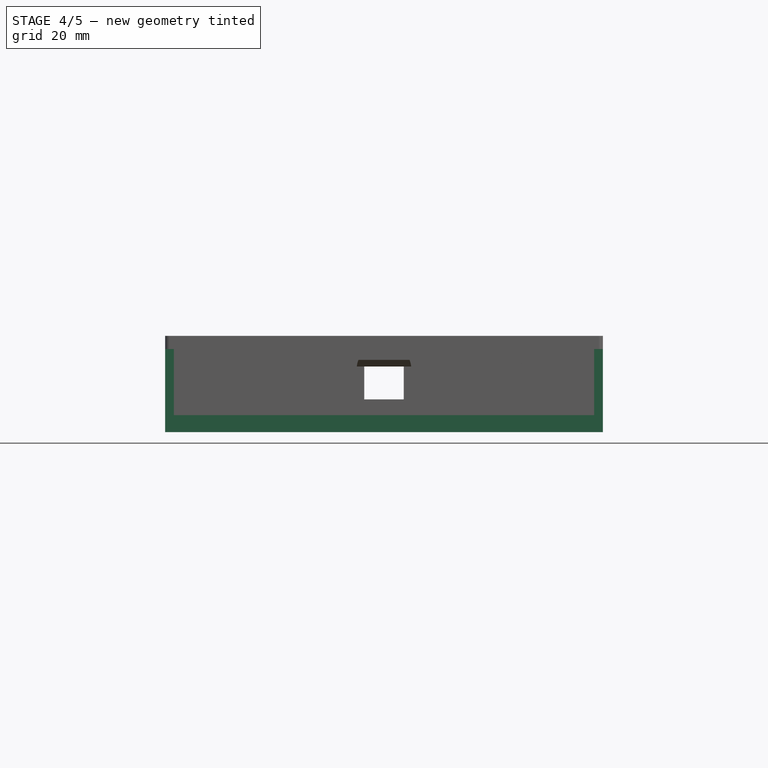
[diagram: stage 4 of 5 — front view after this stage's code; geometry added in this stage tinted green]
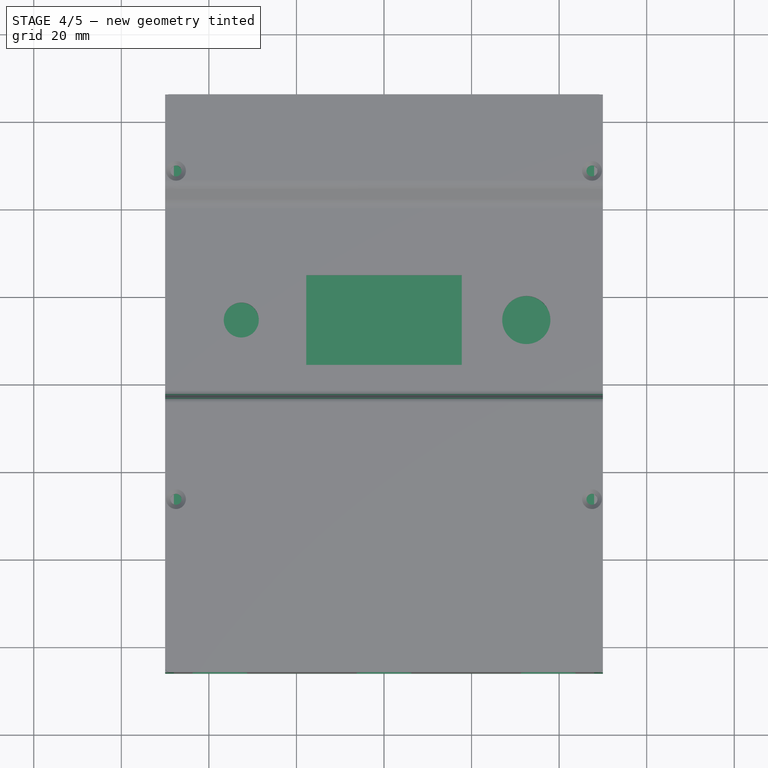
[diagram: stage 4 of 5 — top view after this stage's code; geometry added in this stage tinted green]
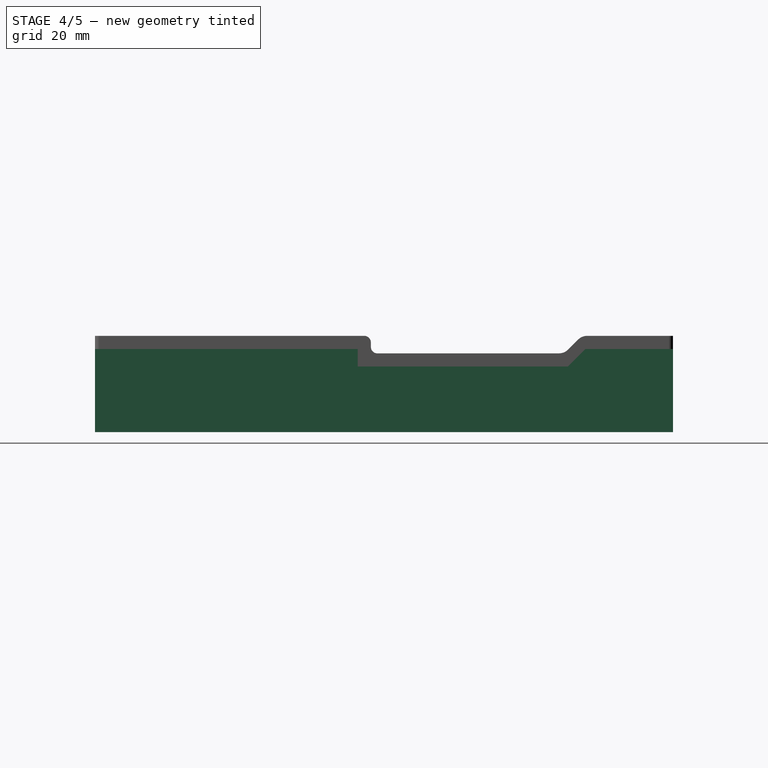
[diagram: stage 4 of 5 — right view after this stage's code; geometry added in this stage tinted green]
FEATURE [Sketcher::SketchObject] Sketch  label="Base"
  FullyConstrained = true
  MapMode = 5
  Support = -> [XY_Plane]
  expr: Constraints[10] = (Spreadsheet.wall_top_thickness + Spreadsheet.walls_thickness + 2 * Spreadsheet.backlash + Spreadsheet.pcb_height) / 2
  expr: Constraints[11] = (2 * Spreadsheet.walls_thickness + 2 * Spreadsheet.backlash + Spreadsheet.pcb_width) / 2
  expr: Constraints[8] = Spreadsheet.wall_top_thickness + Spreadsheet.walls_thickness + 2 * Spreadsheet.backlash + Spreadsheet.pcb_height
  expr: Constraints[9] = 2 * Spreadsheet.walls_thickness + 2 * Spreadsheet.backlash + Spreadsheet.pcb_width
  sketch-geometry (4):
    g0: LineSegment StartX=-50 StartY=66 StartZ=0 EndX=50 EndY=66 EndZ=0
    g1: LineSegment StartX=50 StartY=66 StartZ=0 EndX=50 EndY=-66 EndZ=0
    g2: LineSegment StartX=50 StartY=-66 StartZ=0 EndX=-50 EndY=-66 EndZ=0
    g3: LineSegment StartX=-50 StartY=-66 StartZ=0 EndX=-50 EndY=66 EndZ=0
  constraints (12):
    c: Coincident(g0,g1)
    c: Coincident(g1,g2)
    c: Coincident(g2,g3)
    c: Coincident(g3,g0)
    c: Horizontal(g0)
    c: Horizontal(g2)
    c: Vertical(g1)
    c: Vertical(g3)
    c: Distance(g1) = 132
    c: Distance(g0) = 100
    c: Distance(g-1,g0) = 66
    c: Distance(g-1,g1) = 50
FEATURE [PartDesign::Pad] Pad
  Direction = (0,0,1)
  Length = 19
  Length2 = 100
  Profile = -> Sketch
  ReferenceAxis = -> Sketch [N_Axis]
  Type = 0
FEATURE [Sketcher::SketchObject] Sketch001
  ExternalGeometry = -> [Pad]
  FullyConstrained = true
  MapMode = 5
  Placement = pos=(0,0,19) rot=(0,0,1;0rad)
  Support = -> [Pad]
  expr: Constraints[10] = Spreadsheet.walls_thickness
  expr: Constraints[11] = 0
  expr: Constraints[8] = 0
  expr: Constraints[9] = Spreadsheet.walls_thickness
  sketch-geometry (4):
    g0: LineSegment StartX=-48 StartY=66 StartZ=0 EndX=48 EndY=66 EndZ=0
    g1: LineSegment StartX=48 StartY=66 StartZ=0 EndX=48 EndY=-66 EndZ=0
    g2: LineSegment StartX=48 StartY=-66 StartZ=0 EndX=-48 EndY=-66 EndZ=0
    g3: LineSegment StartX=-48 StartY=-66 StartZ=0 EndX=-48 EndY=66 EndZ=0
  constraints (12):
    c: Coincident(g0,g1)
    c: Coincident(g1,g2)
    c: Coincident(g2,g3)
    c: Coincident(g3,g0)
    c: Horizontal(g0)
    c: Horizontal(g2)
    c: Vertical(g1)
    c: Vertical(g3)
    c: DistanceY(g0,g-5) = 0
    c: DistanceX(g-6,g2) = 2
    c: DistanceX(g0,g-4) = 2
    c: DistanceY(g-6,g2) = 0
FEATURE [PartDesign::Pocket] Pocket
  BaseFeature = -> Pad
  Direction = (0,0,-1)
  Length = 15.1
  Length2 = 100
  Profile = -> Sketch001
  Type = 0
FEATURE [Spreadsheet::Sheet] Spreadsheet
  cells = A1=pcb_width; B1(pcb_width)=95; A2=pcb_height; B2(pcb_height)=128; A3=pcb_holes_x_space; B3(pcb_holes_x_space)=83; A4=pcb_holes_y_space; B4(pcb_holes_y_space)=64; A5=pcb_holes_offset; B5(pcb_holes_offset)=6; A6=wall_top_thickness; B6(wall_top_thickness)=1; A7=walls_thickness; B7(walls_thickness)=2; A8=backlash; B8(backlash)=0.5; A10=usb_c_x_offset; B10=33.27; A12=thickness_top; B12(thickness_top)=3
FEATURE [Part::Feature] Feature  label="Tattoo_Supply1-v1.0"
  Placement = pos=(0,0.5,7.5) rot=(0,0,1;0rad)
  shape: large baked B-rep (32 MB .brp); summary skipped
FEATURE [Sketcher::SketchObject] Sketch003
  FullyConstrained = false
  MapMode = 5
  Placement = pos=(-50,0,0) rot=(0.57735,-0.57735,-0.57735;2.0944rad)
  sketch-geometry (4):
    g0: LineSegment StartX=6 StartY=19 StartZ=0 EndX=6 EndY=15 EndZ=0
    g1: LineSegment StartX=6 StartY=15 StartZ=0 EndX=-42 EndY=15 EndZ=0
    g2: LineSegment StartX=-42 StartY=15 StartZ=0 EndX=-46 EndY=19 EndZ=0
    g3: LineSegment StartX=-46 StartY=19 StartZ=0 EndX=6 EndY=19 EndZ=0
  constraints (8):
    c: Vertical(g0)
    c: Coincident(g1,g0)
    c: Horizontal(g1)
    c: Coincident(g2,g1)
    c: DistanceY(g0,g0) = 4
    c: Coincident(g3,g2)
    c: Coincident(g3,g0)
    c: Horizontal(g3)
FEATURE [PartDesign::Pocket] Pocket001
  BaseFeature = -> Pocket
  Direction = (1,0,0)
  Length = 5
  Length2 = 5
  Profile = -> Sketch003
  ReferenceAxis = -> Sketch003 [N_Axis]
  Type = 1
FEATURE [PartDesign::Fillet] Fillet002
  Base = -> Fillet001 [Edge233,Edge217]
  BaseFeature = -> Fillet001
  Placement = pos=(48,-1.1e-14,1.1e-14) rot=(0.57735,0.57735,0.57735;2.0944rad)
  Radius = 1.5
  SupportTransform = false
  UseAllEdges = false
FEATURE [PartDesign::Fillet] Fillet003
  Base = -> Fillet002 [Edge304,Edge244,Edge10,Edge11]
  BaseFeature = -> Fillet002
  Placement = pos=(48,-1.1e-14,1.1e-14) rot=(0.57735,0.57735,0.57735;2.0944rad)
  Radius = 1
  SupportTransform = false
  UseAllEdges = false
FEATURE [PartDesign::Body] Body001  label="Top"
  Group = -> [DatumPlane,Sketch005,Pad002,Sketch006,Sketch007,Pad003,Mirrored,Pocket002,Sketch008,Pocket003,Sketch009,Pocket004,Sketch010,Pocket005,Chamfer,Sketch011,Pocket006,Chamfer001,Chamfer002,Chamfer003,Sketch014,Pocket008,Sketch015,Pocket009,Chamfer005,Mirrored002,Fillet001,Fillet002,Fillet003]
  Origin = -> Origin001
  Tip = -> Fillet003
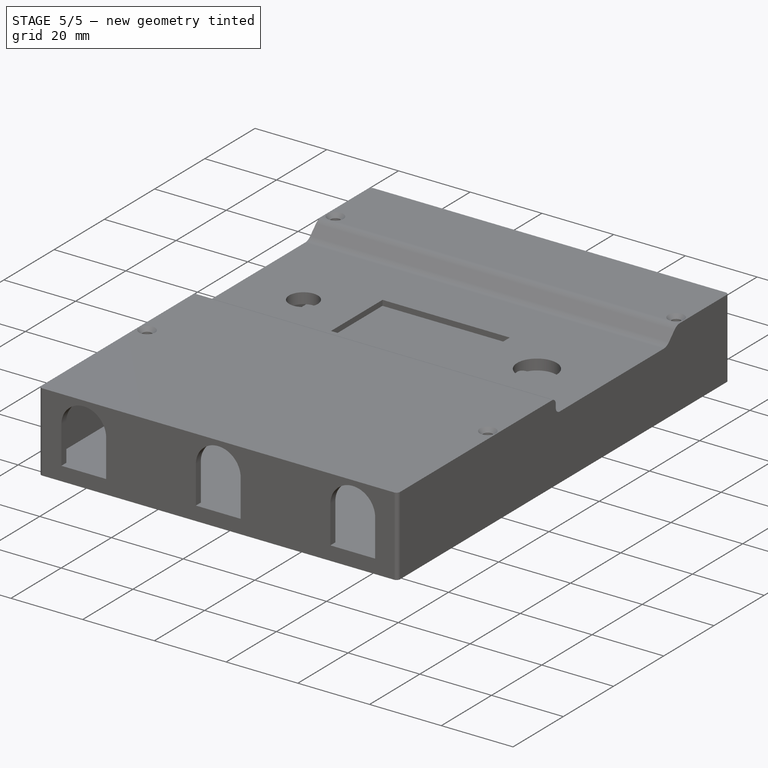
[diagram: stage 5 of 5 — iso view after this stage's code; geometry added in this stage tinted green]
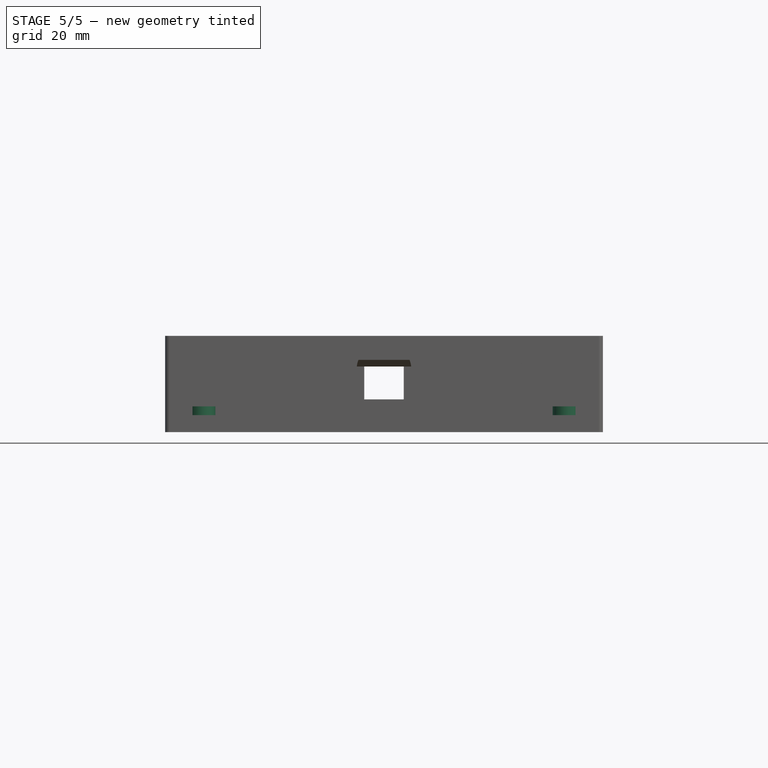
[diagram: stage 5 of 5 — front view after this stage's code; geometry added in this stage tinted green]
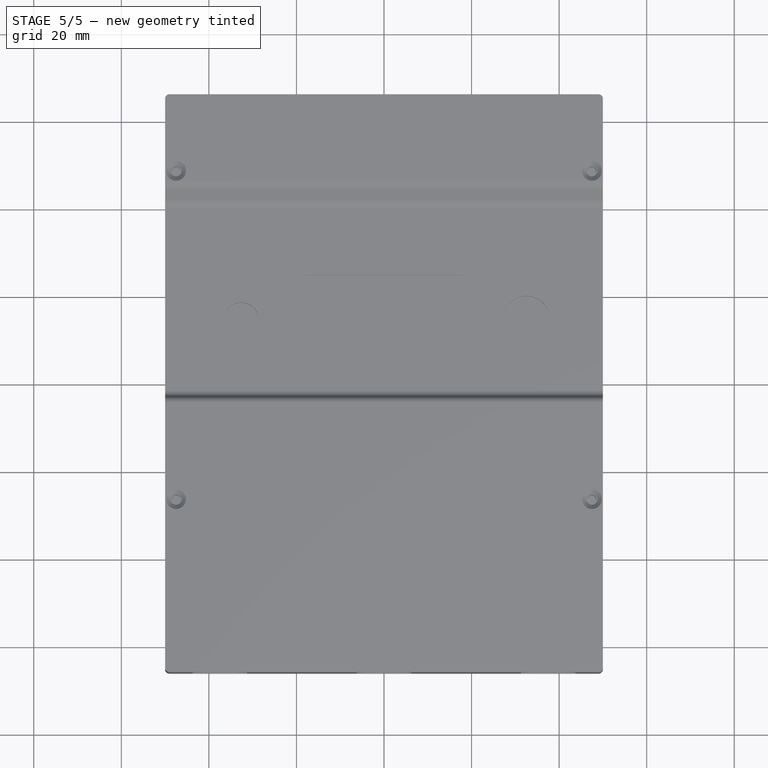
[diagram: stage 5 of 5 — top view after this stage's code; geometry added in this stage tinted green]
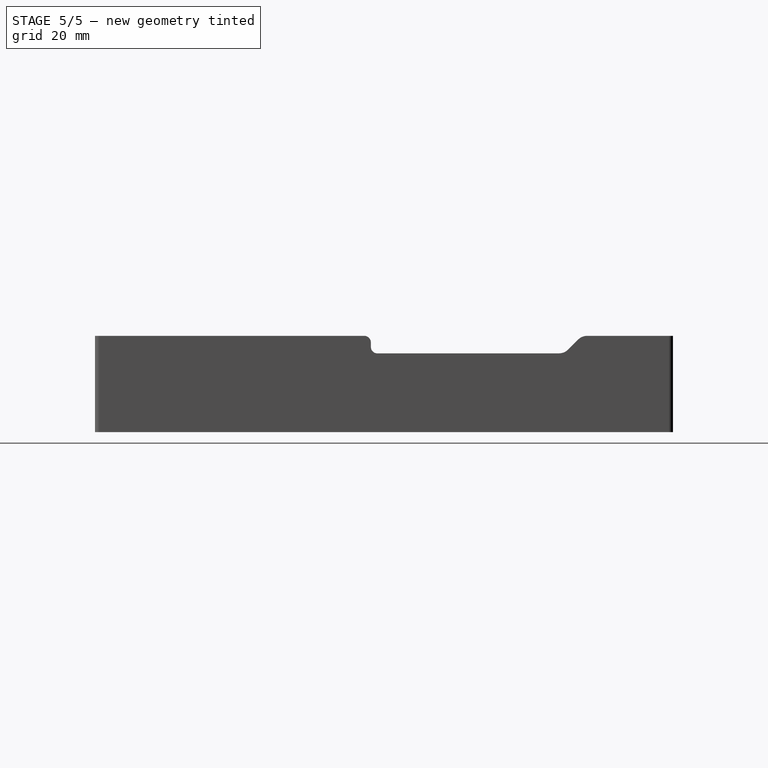
[diagram: stage 5 of 5 — right view after this stage's code; geometry added in this stage tinted green]
FEATURE [Sketcher::SketchObject] Sketch004
  ExternalGeometry = -> [Sketch001]
  FullyConstrained = true
  MapMode = 5
  Placement = pos=(0,0,3.9) rot=(0,0,1;0rad)
  Support = -> [Pocket001]
  expr: Constraints[16] = Spreadsheet.pcb_holes_x_space
  expr: Constraints[17] = Spreadsheet.pcb_holes_x_space / 2
  expr: Constraints[18] = Spreadsheet.pcb_holes_y_space
  expr: Constraints[19] = Spreadsheet.pcb_holes_offset + Spreadsheet.backlash + 1
  sketch-geometry (8):
    g0: Circle CenterX=-41.5 CenterY=58.5 CenterZ=0 NormalX=0 NormalY=0 NormalZ=1 AngleXU=0 Radius=3
    g1: Circle CenterX=-41.5 CenterY=58.5 CenterZ=0 NormalX=0 NormalY=0 NormalZ=1 AngleXU=0 Radius=1
    g2: Circle CenterX=41.5 CenterY=58.5 CenterZ=0 NormalX=0 NormalY=0 NormalZ=1 AngleXU=0 Radius=3
    g3: Circle CenterX=41.5 CenterY=58.5 CenterZ=0 NormalX=0 NormalY=0 NormalZ=1 AngleXU=0 Radius=1
    g4: Circle CenterX=41.5 CenterY=-5.5 CenterZ=0 NormalX=0 NormalY=0 NormalZ=1 AngleXU=0 Radius=3
    g5: Circle CenterX=41.5 CenterY=-5.5 CenterZ=0 NormalX=0 NormalY=0 NormalZ=1 AngleXU=0 Radius=1
    g6: Circle CenterX=-41.5 CenterY=-5.5 CenterZ=0 NormalX=0 NormalY=0 NormalZ=1 AngleXU=0 Radius=3
    g7: Circle CenterX=-41.5 CenterY=-5.5 CenterZ=0 NormalX=0 NormalY=0 NormalZ=1 AngleXU=0 Radius=1
  constraints (20):
    c: Coincident(g1,g0)
    c: Coincident(g3,g2)
    c: Coincident(g5,g4)
    c: Coincident(g7,g6)
    c: Horizontal(g0,g2)
    c: Horizontal(g6,g4)
    c: Vertical(g6,g0)
    c: Vertical(g2,g4)
    c: Diameter(g0) = 6
    c: Diameter(g1) = 2
    c: Equal(g1,g3)
    c: Equal(g3,g5)
    c: Equal(g5,g7)
    c: Equal(g0,g2)
    c: Equal(g2,g4)
    c: Equal(g4,g6)
    c: DistanceX(g0,g2) = 83
    c: DistanceX(g0,g-1) = 41.5
    c: DistanceY(g4,g2) = 64
    c: DistanceY(g2,g-3) = 7.5
FEATURE [PartDesign::Pad] Pad001
  BaseFeature = -> Pocket001
  Direction = (0,0,1)
  Length = 2
  Length2 = 10
  Profile = -> Sketch004
  ReferenceAxis = -> Sketch004 [N_Axis]
  Type = 0
FEATURE [Sketcher::SketchObject] Sketch012
  ExternalGeometry = -> [Pad001]
  FullyConstrained = true
  MapMode = 5
  Placement = pos=(0,0,19) rot=(0,0,1;0rad)
  Support = -> [Pad001]
  sketch-geometry (8):
    g0: LineSegment StartX=-48 StartY=-24 StartZ=0 EndX=-48 EndY=-29 EndZ=0
    g1: LineSegment StartX=-48 StartY=46 StartZ=0 EndX=-48 EndY=51 EndZ=0
    g2: LineSegment StartX=-48 StartY=46 StartZ=0 EndX=-47.5 EndY=46 EndZ=0
    g3: LineSegment StartX=-48 StartY=51 StartZ=0 EndX=-47.5 EndY=51 EndZ=0
    g4: ArcOfCircle CenterX=-47.5 CenterY=48.5 CenterZ=0 NormalX=0 NormalY=0 NormalZ=1 AngleXU=0 Radius=2.5 StartAngle=4.71239 EndAngle=7.85398
    g5: LineSegment StartX=-48 StartY=-24 StartZ=0 EndX=-47.5 EndY=-24 EndZ=0
    g6: LineSegment StartX=-48 StartY=-29 StartZ=0 EndX=-47.5 EndY=-29 EndZ=0
    g7: ArcOfCircle CenterX=-47.5 CenterY=-26.5 CenterZ=0 NormalX=0 NormalY=0 NormalZ=1 AngleXU=0 Radius=2.5 StartAngle=4.71239 EndAngle=7.85398
  constraints (25):
    c: Vertical(g0)
    c: DistanceY(g0,g-4) = 18
    c: Coincident(g1,g-3)
    c: PointOnObject(g1,g-3)
    c: Coincident(g2,g1)
    c: Horizontal(g2)
    c: Coincident(g3,g1)
    c: Horizontal(g3)
    c: Distance(g1) = 5
    c: Distance(g3) = 0.5
    c: Distance(g2) = 0.5
    c: Coincident(g4,g2)
    c: DistanceX(g1,g4) = 0.5
    c: Coincident(g4,g3)
    c: Distance(g0) = 5
    c: Coincident(g5,g0)
    c: Horizontal(g5)
    c: Coincident(g6,g0)
    c: Horizontal(g6)
    c: Distance(g5) = 0.5
    c: Distance(g6) = 0.5
    c: PointOnObject(g0,g-4)
    c: Coincident(g7,g5)
    c: Coincident(g7,g6)
    c: DistanceX(g0,g7) = 0.5
FEATURE [PartDesign::Pad] Pad004
  BaseFeature = -> Pad001
  Direction = (0,0,1)
  Length = 1
  Length2 = 10
  Profile = -> Sketch012
  ReferenceAxis = -> Sketch012 [N_Axis]
  Reversed = true
  Type = 0
FEATURE [Sketcher::SketchObject] Sketch013
  ExternalGeometry = -> [Sketch012]
  FullyConstrained = true
  MapMode = 5
  Placement = pos=(0,0,19) rot=(0,0,1;0rad)
  sketch-geometry (2):
    g0: Circle CenterX=-47.5 CenterY=48.5 CenterZ=0 NormalX=0 NormalY=0 NormalZ=1 AngleXU=0 Radius=1
    g1: Circle CenterX=-47.5 CenterY=-26.5 CenterZ=0 NormalX=0 NormalY=0 NormalZ=1 AngleXU=0 Radius=1
  constraints (6):
    c: Diameter(g1) = 2
    c: Diameter(g0) = 2
    c: DistanceX(g-4,g0) = 0.5
    c: DistanceY(g-4,g0) = 2.5
    c: DistanceY(g1,g-3) = 2.5
    c: DistanceX(g-3,g1) = 0.5
FEATURE [PartDesign::Chamfer] Chamfer004
  Angle = 30
  Base = -> Pad004 [Edge41,Edge34]
  BaseFeature = -> Pad004
  ChamferType = 2
  FlipDirection = false
  Size = 5
  Size2 = 1
  SupportTransform = false
  UseAllEdges = false
FEATURE [PartDesign::Pocket] Pocket007
  BaseFeature = -> Chamfer004
  Direction = (0,0,-1)
  Length = 6.5
  Length2 = 5
  Profile = -> Sketch013
  ReferenceAxis = -> Sketch013 [N_Axis]
  Type = 0
FEATURE [PartDesign::Mirrored] Mirrored001
  BaseFeature = -> Pocket007
  MirrorPlane = -> YZ_Plane
  Originals = -> [Pad004,Chamfer004,Pocket007]
FEATURE [PartDesign::Fillet] Fillet
  Base = -> Mirrored001 [Edge74,Edge82,Edge85,Edge70]
  BaseFeature = -> Mirrored001
  Radius = 1
  SupportTransform = false
  UseAllEdges = false
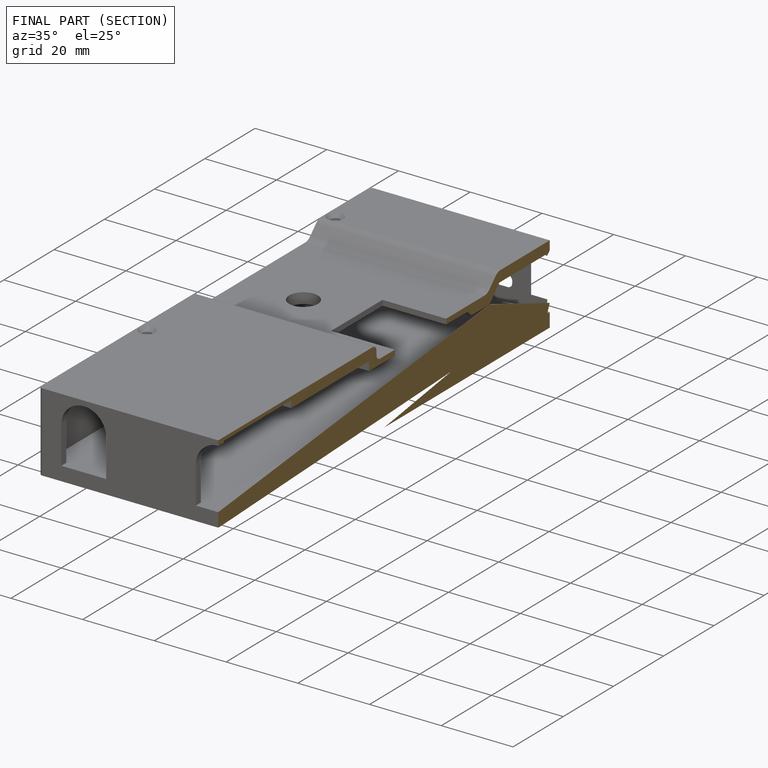
[diagram: finished part — half-section view (interior)]
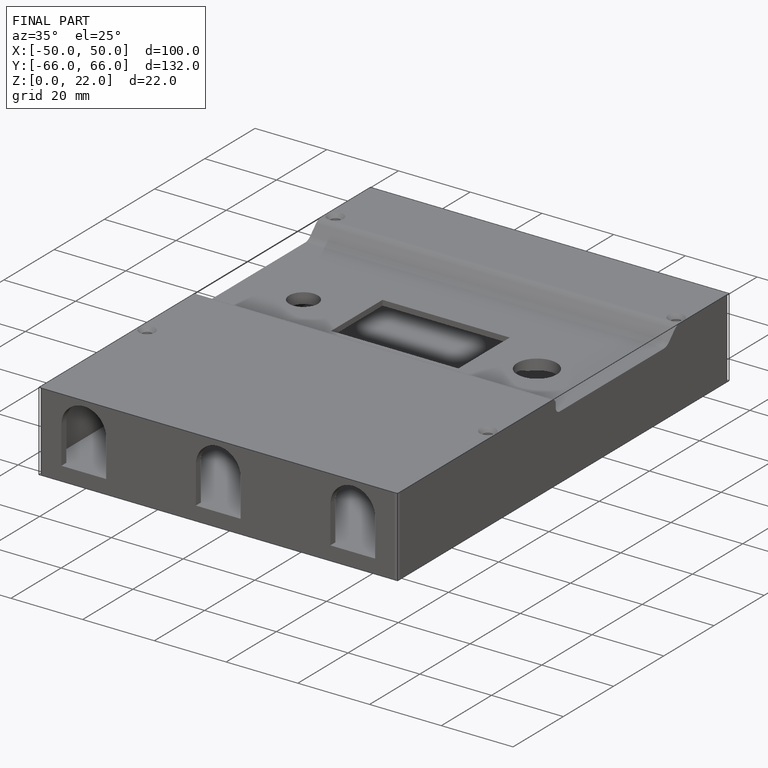
[diagram: finished part — iso view with bounding-box wireframe]
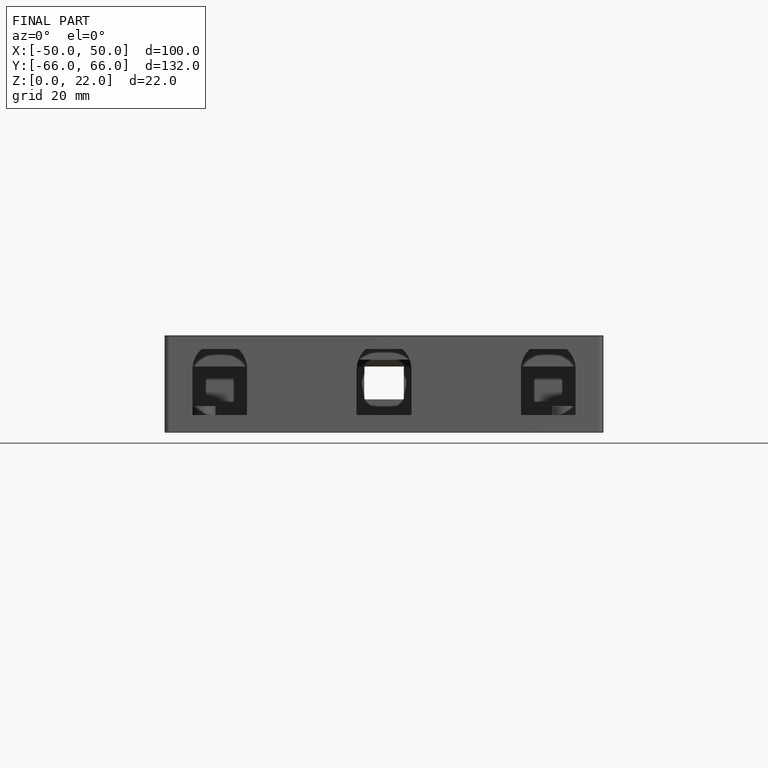
[diagram: finished part — front view with bounding-box wireframe]
